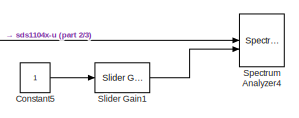
[diagram: root canvas - part 1/3, top center region]
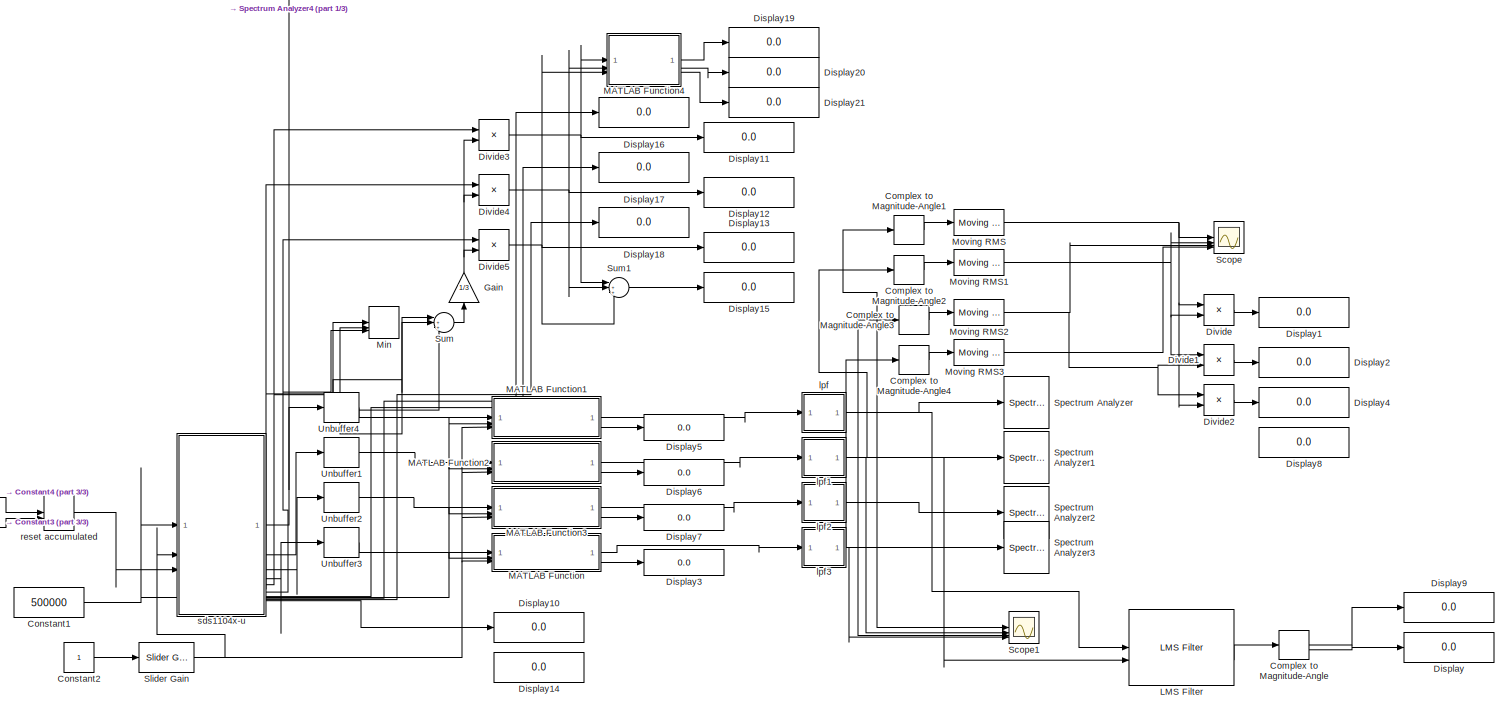
[diagram: root canvas - part 2/3, most of the canvas]
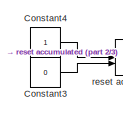
[diagram: root canvas - part 3/3, bottom left region]
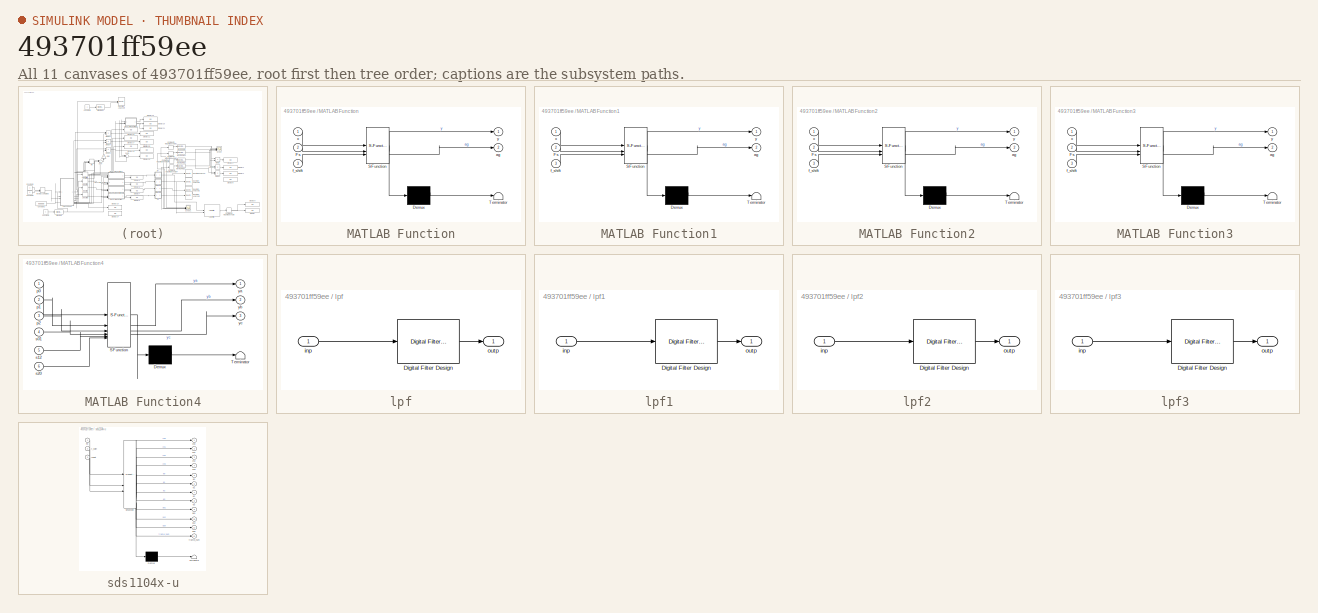
[diagram: thumbnail index - all 11 canvases of the model, root first then tree order]
MODEL slx_493701ff59ee
KIND model
CONFIG AbsTol = auto
CONFIG EnableMultiTasking = off
CONFIG FixedStep = auto
CONFIG MaxStep = auto
CONFIG MinStep = auto
CONFIG RelTol = 1e-3
CONFIG SampleTimeConstraint = Unconstrained
CONFIG SolverName = VariableStepAuto
CONFIG StartTime = 0.0
CONFIG StopTime = inf
BLOCK [ComplexToMagnitudeAngle] Complex to Magnitude-Angle
  Commented = on
BLOCK [ComplexToMagnitudeAngle] Complex to Magnitude-Angle1
  Commented = on
BLOCK [ComplexToMagnitudeAngle] Complex to Magnitude-Angle2
  Commented = on
BLOCK [ComplexToMagnitudeAngle] Complex to Magnitude-Angle3
  Commented = on
BLOCK [ComplexToMagnitudeAngle] Complex to Magnitude-Angle4
  Commented = on
BLOCK [Constant] Constant1
  Value = 500000
BLOCK [Constant] Constant2
BLOCK [Constant] Constant3
  Value = 0
BLOCK [Constant] Constant4
BLOCK [Constant] Constant5
BLOCK [Display] Display
  Commented = on
  Decimation = 1
BLOCK [Display] Display1
  Commented = on
  Decimation = 1
BLOCK [Display] Display10
  Commented = on
  Decimation = 1
BLOCK [Display] Display11
  Commented = on
  Decimation = 1
BLOCK [Display] Display12
  Commented = on
  Decimation = 1
BLOCK [Display] Display13
  Commented = on
  Decimation = 1
BLOCK [Display] Display14
  Commented = on
  Decimation = 1
BLOCK [Display] Display15
  Commented = on
  Decimation = 1
BLOCK [Display] Display16
  Commented = on
  Decimation = 1
BLOCK [Display] Display17
  Commented = on
  Decimation = 1
BLOCK [Display] Display18
  Commented = on
  Decimation = 1
BLOCK [Display] Display19
  Commented = on
  Decimation = 1
BLOCK [Display] Display2
  Commented = on
  Decimation = 1
BLOCK [Display] Display20
  Commented = on
  Decimation = 1
BLOCK [Display] Display21
  Commented = on
  Decimation = 1
BLOCK [Display] Display3
  Commented = on
  Decimation = 1
BLOCK [Display] Display4
  Commented = on
  Decimation = 1
BLOCK [Display] Display5
  Commented = on
  Decimation = 1
BLOCK [Display] Display6
  Commented = on
  Decimation = 1
BLOCK [Display] Display7
  Commented = on
  Decimation = 1
BLOCK [Display] Display8
  Commented = on
  Decimation = 1
BLOCK [Display] Display9
  Commented = on
  Decimation = 1
BLOCK [Product] Divide
  Commented = on
  Inputs = */
BLOCK [Product] Divide1
  Commented = on
  Inputs = */
BLOCK [Product] Divide2
  Commented = on
  Inputs = */
BLOCK [Product] Divide3
  Commented = on
  Inputs = */
BLOCK [Product] Divide4
  Commented = on
  Inputs = */
BLOCK [Product] Divide5
  Commented = on
  Inputs = */
BLOCK [Gain] Gain
  Commented = on
  Gain = 1/3
  NameLocation = right
BLOCK [Reference] LMS Filter  REF=dspadpt3/LMS Filter
  Commented = on
  LibrarySourceBlock = dsphdlsupportfiltering/LMS Filter
  SourceBlock = dspadpt3/LMS Filter
  SourceType = LMS Filter
BLOCK [SubSystem] MATLAB Function
  Commented = on
  ErrorFcn = Stateflow.Translate.translate
  LibrarySourceBlock = simulink/User-Defined\nFunctions/MATLAB Function
  PermitHierarchicalResolution = ExplicitOnly
  SFBlockType = MATLAB Function
  TreatAsAtomicUnit = on
BLOCK [Demux] MATLAB Function/ Demux 
  Outputs = 1
BLOCK [S-Function] MATLAB Function/ SFunction 
  EnableBusSupport = on
  FunctionName = sf_sfun
  PortCounts = [3 3]
  SFcnIsStateOwnerBlock = off
  SFunctionDeploymentMode = off
  Tag = Stateflow S-Function 1
BLOCK [Terminator] MATLAB Function/ Terminator 
BLOCK [Inport] MATLAB Function/Fs
  Port = 2
BLOCK [Outport] MATLAB Function/ag
  Port = 2
BLOCK [Inport] MATLAB Function/f_shift
  Port = 3
BLOCK [Inport] MATLAB Function/x
BLOCK [Outport] MATLAB Function/y
BLOCK [SubSystem] MATLAB Function1
  Commented = on
  ErrorFcn = Stateflow.Translate.translate
  LibrarySourceBlock = simulink/User-Defined\nFunctions/MATLAB Function
  PermitHierarchicalResolution = ExplicitOnly
  SFBlockType = MATLAB Function
  TreatAsAtomicUnit = on
BLOCK [Demux] MATLAB Function1/ Demux 
  Outputs = 1
BLOCK [S-Function] MATLAB Function1/ SFunction 
  EnableBusSupport = on
  FunctionName = sf_sfun
  PortCounts = [3 3]
  SFcnIsStateOwnerBlock = off
  SFunctionDeploymentMode = off
  Tag = Stateflow S-Function 3
BLOCK [Terminator] MATLAB Function1/ Terminator 
BLOCK [Inport] MATLAB Function1/Fs
  Port = 2
BLOCK [Outport] MATLAB Function1/ag
  Port = 2
BLOCK [Inport] MATLAB Function1/f_shift
  Port = 3
BLOCK [Inport] MATLAB Function1/x
BLOCK [Outport] MATLAB Function1/y
BLOCK [SubSystem] MATLAB Function2
  Commented = on
  ErrorFcn = Stateflow.Translate.translate
  LibrarySourceBlock = simulink/User-Defined\nFunctions/MATLAB Function
  PermitHierarchicalResolution = ExplicitOnly
  SFBlockType = MATLAB Function
  TreatAsAtomicUnit = on
BLOCK [Demux] MATLAB Function2/ Demux 
  Outputs = 1
BLOCK [S-Function] MATLAB Function2/ SFunction 
  EnableBusSupport = on
  FunctionName = sf_sfun
  PortCounts = [3 3]
  SFcnIsStateOwnerBlock = off
  SFunctionDeploymentMode = off
  Tag = Stateflow S-Function 4
BLOCK [Terminator] MATLAB Function2/ Terminator 
BLOCK [Inport] MATLAB Function2/Fs
  Port = 2
BLOCK [Outport] MATLAB Function2/ag
  Port = 2
BLOCK [Inport] MATLAB Function2/f_shift
  Port = 3
BLOCK [Inport] MATLAB Function2/x
BLOCK [Outport] MATLAB Function2/y
BLOCK [SubSystem] MATLAB Function3
  Commented = on
  ErrorFcn = Stateflow.Translate.translate
  LibrarySourceBlock = simulink/User-Defined\nFunctions/MATLAB Function
  PermitHierarchicalResolution = ExplicitOnly
  SFBlockType = MATLAB Function
  TreatAsAtomicUnit = on
BLOCK [Demux] MATLAB Function3/ Demux 
  Outputs = 1
BLOCK [S-Function] MATLAB Function3/ SFunction 
  EnableBusSupport = on
  FunctionName = sf_sfun
  PortCounts = [3 3]
  SFcnIsStateOwnerBlock = off
  SFunctionDeploymentMode = off
  Tag = Stateflow S-Function 5
BLOCK [Terminator] MATLAB Function3/ Terminator 
BLOCK [Inport] MATLAB Function3/Fs
  Port = 2
BLOCK [Outport] MATLAB Function3/ag
  Port = 2
BLOCK [Inport] MATLAB Function3/f_shift
  Port = 3
BLOCK [Inport] MATLAB Function3/x
BLOCK [Outport] MATLAB Function3/y
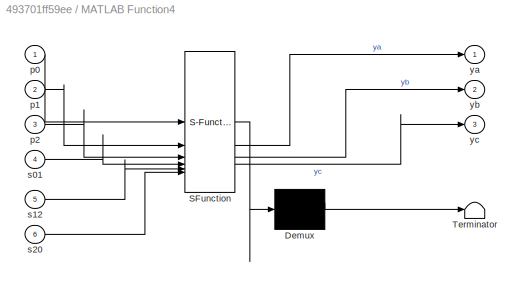
BLOCK [SubSystem] MATLAB Function4
  Commented = on
  ErrorFcn = Stateflow.Translate.translate
  LibrarySourceBlock = simulink/User-Defined\nFunctions/MATLAB Function
  PermitHierarchicalResolution = ExplicitOnly
  SFBlockType = MATLAB Function
  TreatAsAtomicUnit = on
BLOCK [Demux] MATLAB Function4/ Demux 
  Outputs = 1
BLOCK [S-Function] MATLAB Function4/ SFunction 
  EnableBusSupport = on
  FunctionName = sf_sfun
  PortCounts = [6 4]
  SFcnIsStateOwnerBlock = off
  SFunctionDeploymentMode = off
  Tag = Stateflow S-Function 6
BLOCK [Terminator] MATLAB Function4/ Terminator 
BLOCK [Inport] MATLAB Function4/p0
BLOCK [Inport] MATLAB Function4/p1
  Port = 2
BLOCK [Inport] MATLAB Function4/p2
  Port = 3
BLOCK [Inport] MATLAB Function4/s01
  Port = 4
BLOCK [Inport] MATLAB Function4/s12
  Port = 5
BLOCK [Inport] MATLAB Function4/s20
  Port = 6
BLOCK [Outport] MATLAB Function4/ya
BLOCK [Outport] MATLAB Function4/yb
  Port = 2
BLOCK [Outport] MATLAB Function4/yc
  Port = 3
BLOCK [MinMax] Min
  Commented = on
  Inputs = 3
BLOCK [Reference] Moving RMS  REF=dspstat3/Moving
RMS
  Commented = on
  SourceBlock = dspstat3/Moving\nRMS
  SourceType = dsp.simulink.MovingRMS
BLOCK [Reference] Moving RMS1  REF=dspstat3/Moving
RMS
  Commented = on
  SourceBlock = dspstat3/Moving\nRMS
  SourceType = dsp.simulink.MovingRMS
BLOCK [Reference] Moving RMS2  REF=dspstat3/Moving
RMS
  Commented = on
  SourceBlock = dspstat3/Moving\nRMS
  SourceType = dsp.simulink.MovingRMS
BLOCK [Reference] Moving RMS3  REF=dspstat3/Moving
RMS
  Commented = on
  SourceBlock = dspstat3/Moving\nRMS
  SourceType = dsp.simulink.MovingRMS
BLOCK [Scope] Scope
  Commented = on
  Floating = off
  NumInputPorts = 4
  ScopeSpecificationString = Simulink.scopes.TimeScopeBlockCfg('CurrentConfiguration', extmgr.ConfigurationSet(extmgr.Configuration('Core','General UI',true),extmgr.Configuration('Core','Source UI',true),extmgr.Configuration('Sources','WiredSimulink',true),extmgr.Configuration('Visuals','Time Domain',true,'SerializedDisplays',{struct('MinYLimReal','-0.06903','MaxYLimReal','0.62201','YLabelReal','','MinYLimMag','0.00000','MaxY...<+1446ch>
BLOCK [Scope] Scope1
  Commented = on
  Floating = off
  NumInputPorts = 4
  ScopeSpecificationString = Simulink.scopes.TimeScopeBlockCfg('CurrentConfiguration', extmgr.ConfigurationSet(extmgr.Configuration('Core','General UI',true),extmgr.Configuration('Core','Source UI',true),extmgr.Configuration('Sources','WiredSimulink',true,'DataLoggingVariableName','ScopeData1'),extmgr.Configuration('Visuals','Time Domain',true,'SerializedDisplays',{struct('MinYLimReal','-0.40869','MaxYLimReal','0.61008','YLab...<+1532ch>
BLOCK [Reference] Slider Gain  REF=simulink/Math
Operations/Slider
Gain
  SourceBlock = simulink/Math\nOperations/Slider\nGain
  SourceType = Slider Gain
BLOCK [Reference] Slider Gain1  REF=simulink/Math
Operations/Slider
Gain
  SourceBlock = simulink/Math\nOperations/Slider\nGain
  SourceType = Slider Gain
BLOCK [SpectrumAnalyzer] Spectrum Analyzer
  Commented = on
  GraphicalSettings = {"GraphicalSettings":{"Style":{"BackgroundColor":[0.1568627450980392,0.1568627450980392,0.1568627450980392],"AxesColor":[0,0,0],"LabelsColor":[0.6862745098039216,0.6862745098039216,0.6862745098039216],"PreserveColors":false,"Visible":[true],"LineStyle":["-"],"LineColor":[[1,1,0.06666666666666667]],"LineWidth":[1.5],"Marker":["none"],"FontSize":"small"},"Cursors":{"Enabled":false,"XLocation":[2,8],...<+831ch>  <repeated x5 — deduplicated; at blocks: Spectrum Analyzer, Spectrum Analyzer1, Spectrum Analyzer2, Spectrum Analyzer3, Spectrum Analyzer4>
  ScopeFrameLocation = window
  ScopeSpecificationString = spbscopes.SpectrumAnalyzerBlockCfg('CurrentConfiguration', extmgr.ConfigurationSet(extmgr.Configuration('Core','General UI',true),extmgr.Configuration('Core','Source UI',true),extmgr.Configuration('Sources','WiredSimulink',true),extmgr.Configuration('Visuals','Spectrum',true,'AxesProperties',struct('Color',{[0 0 0],[0 0 0]},'XColor',{[0.686274509803922 0.686274509803922 0.686274509803922],[0.68627...<+1359ch>  <repeated x5 — deduplicated; at blocks: Spectrum Analyzer, Spectrum Analyzer1, Spectrum Analyzer2, Spectrum Analyzer3, Spectrum Analyzer4>
  SelectedToolstripTab = spectrumAnalyzerToolstrip.spectrumTab
  Span = 1953.1249999999998
  StartFrequency = -976.5624999999999
  StopFrequency = 976.5624999999999
  WasSavedAsWebScope = on
  WindowPosition = [1333.000000,837.000000,800.000000,500.000000,]
  YLimits = [-200.02963136,37.61316984]
BLOCK [SpectrumAnalyzer] Spectrum Analyzer1
  Commented = on
  ScopeFrameLocation = window
  SelectedToolstripTab = spectrumAnalyzerToolstrip.spectrumTab
  Span = 499999.99999999994
  StartFrequency = -249999.99999999997
  StopFrequency = 249999.99999999997
  WasSavedAsWebScope = on
  WindowPosition = [331.000000,269.000000,800.000000,500.000000,]
  YLimits = [-197.24170404,43.77217197]
BLOCK [SpectrumAnalyzer] Spectrum Analyzer2
  Commented = on
  ScopeFrameLocation = window
  SelectedToolstripTab = spectrumAnalyzerToolstrip.spectrumTab
  Span = 499999.99999999994
  StartFrequency = -249999.99999999997
  StopFrequency = 249999.99999999997
  WasSavedAsWebScope = on
  WindowPosition = [384.000000,818.000000,800.000000,500.000000,]
  YLimits = [-195.91596838,38.54486346]
BLOCK [SpectrumAnalyzer] Spectrum Analyzer3
  Commented = on
  ScopeFrameLocation = window
  SelectedToolstripTab = spectrumAnalyzerToolstrip.spectrumTab
  Span = 499999.99999999994
  StartFrequency = -249999.99999999997
  StopFrequency = 249999.99999999997
  WasSavedAsWebScope = on
  WindowPosition = [2177.000000,135.000000,800.000000,500.000000,]
  YLimits = [-182.3936741,38.0814518]
BLOCK [SpectrumAnalyzer] Spectrum Analyzer4
  NumInputPorts = 2
  RBWSource = Input port
  ScopeFrameLocation = window
  Span = 1953.1249999999998
  StartFrequency = -976.5624999999999
  StopFrequency = 976.5624999999999
  WasSavedAsWebScope = on
  WindowPosition = [2081.000000,651.000000,1178.000000,500.000000,]
  YLimits = [-35.90285686,59.65598947]
BLOCK [Sum] Sum
  Commented = on
  Inputs = |+++
BLOCK [Sum] Sum1
  Commented = on
  Inputs = |+++
BLOCK [Unbuffer] Unbuffer1
  Commented = on
BLOCK [Unbuffer] Unbuffer2
  Commented = on
BLOCK [Unbuffer] Unbuffer3
  Commented = on
BLOCK [Unbuffer] Unbuffer4
  Commented = on
BLOCK [SubSystem] lpf
  Commented = on
BLOCK [Reference] lpf/Digital Filter Design  REF=dspfdesign/Digital
Filter Design
  SourceBlock = dspfdesign/Digital\nFilter Design
  SourceType = Digital Filter Design
  UserDataPersistent = on
BLOCK [Inport] lpf/inp
BLOCK [Outport] lpf/outp
BLOCK [SubSystem] lpf1
  Commented = on
BLOCK [Reference] lpf1/Digital Filter Design  REF=dspfdesign/Digital
Filter Design
  SourceBlock = dspfdesign/Digital\nFilter Design
  SourceType = Digital Filter Design
  UserDataPersistent = on
BLOCK [Inport] lpf1/inp
BLOCK [Outport] lpf1/outp
BLOCK [SubSystem] lpf2
  Commented = on
BLOCK [Reference] lpf2/Digital Filter Design  REF=dspfdesign/Digital
Filter Design
  SourceBlock = dspfdesign/Digital\nFilter Design
  SourceType = Digital Filter Design
  UserDataPersistent = on
BLOCK [Inport] lpf2/inp
BLOCK [Outport] lpf2/outp
BLOCK [SubSystem] lpf3
  Commented = on
BLOCK [Reference] lpf3/Digital Filter Design  REF=dspfdesign/Digital
Filter Design
  SourceBlock = dspfdesign/Digital\nFilter Design
  SourceType = Digital Filter Design
  UserDataPersistent = on
BLOCK [Inport] lpf3/inp
BLOCK [Outport] lpf3/outp
BLOCK [ManualSwitch] reset accumulated
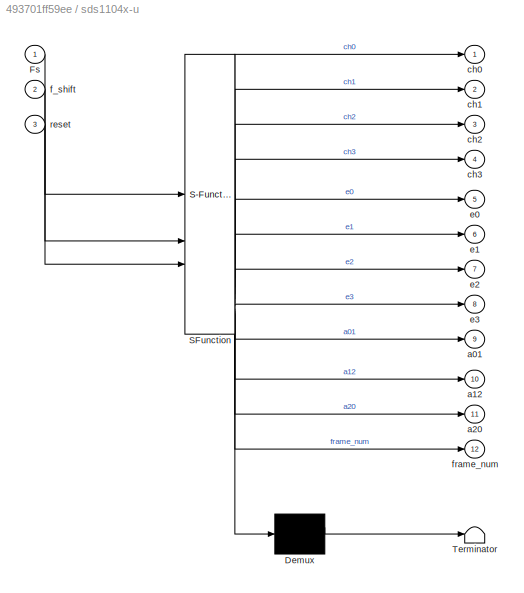
BLOCK [SubSystem] sds1104x-u
  ErrorFcn = Stateflow.Translate.translate
  LibrarySourceBlock = simulink/User-Defined\nFunctions/MATLAB Function
  PermitHierarchicalResolution = ExplicitOnly
  SFBlockType = MATLAB Function
  SystemSampleTime = 700000/500000
  TreatAsAtomicUnit = on
BLOCK [Demux] sds1104x-u/ Demux 
  Outputs = 1
BLOCK [S-Function] sds1104x-u/ SFunction 
  EnableBusSupport = on
  FunctionName = sf_sfun
  PortCounts = [3 13]
  SFcnIsStateOwnerBlock = off
  SFunctionDeploymentMode = off
  Tag = Stateflow S-Function 2
BLOCK [Terminator] sds1104x-u/ Terminator 
BLOCK [Inport] sds1104x-u/Fs
BLOCK [Outport] sds1104x-u/a01
  Port = 9
BLOCK [Outport] sds1104x-u/a12
  Port = 10
BLOCK [Outport] sds1104x-u/a20
  Port = 11
BLOCK [Outport] sds1104x-u/ch0
BLOCK [Outport] sds1104x-u/ch1
  Port = 2
BLOCK [Outport] sds1104x-u/ch2
  Port = 3
BLOCK [Outport] sds1104x-u/ch3
  Port = 4
BLOCK [Outport] sds1104x-u/e0
  Port = 5
BLOCK [Outport] sds1104x-u/e1
  Port = 6
BLOCK [Outport] sds1104x-u/e2
  Port = 7
BLOCK [Outport] sds1104x-u/e3
  Port = 8
BLOCK [Inport] sds1104x-u/f_shift
  Port = 2
BLOCK [Outport] sds1104x-u/frame_num
  Port = 12
BLOCK [Inport] sds1104x-u/reset
  Port = 3
LINE Complex to Magnitude-Angle1:1 -> Moving RMS:1
LINE Complex to Magnitude-Angle2:1 -> Moving RMS1:1
LINE Complex to Magnitude-Angle3:1 -> Moving RMS2:1
LINE Complex to Magnitude-Angle4:1 -> Moving RMS3:1
LINE Complex to Magnitude-Angle:1 -> Display9:1
LINE Complex to Magnitude-Angle:2 -> Display:1
NET Constant1:1 -> MATLAB Function1:2, MATLAB Function2:2, MATLAB Function3:2, MATLAB Function:2, sds1104x-u:1
LINE Constant2:1 -> Slider Gain:1
LINE Constant3:1 -> reset accumulated:2
LINE Constant4:1 -> reset accumulated:1
LINE Constant5:1 -> Slider Gain1:1
LINE Divide1:1 -> Display2:1
LINE Divide2:1 -> Display4:1
NET Divide3:1 -> Display11:1, MATLAB Function4:1, Sum1:1
NET Divide4:1 -> Display12:1, MATLAB Function4:2, Sum1:2
NET Divide5:1 -> Display13:1, MATLAB Function4:3, Sum1:3
LINE Divide:1 -> Display1:1
NET Gain:1 -> Divide3:2, Divide4:2, Divide5:2
LINE LMS Filter:2 -> Complex to Magnitude-Angle:1
LINE MATLAB Function1:1 -> lpf:1
LINE MATLAB Function1:2 -> Display5:1
LINE MATLAB Function2:1 -> lpf1:1
LINE MATLAB Function2:2 -> Display6:1
LINE MATLAB Function3:1 -> lpf2:1
LINE MATLAB Function3:2 -> Display7:1
LINE MATLAB Function4:1 -> Display19:1
LINE MATLAB Function4:2 -> Display20:1
LINE MATLAB Function4:3 -> Display21:1
LINE MATLAB Function:1 -> lpf3:1
LINE MATLAB Function:2 -> Display3:1
NET Moving RMS1:1 -> Divide1:1, Divide:2, Scope:2
NET Moving RMS2:1 -> Divide1:2, Divide2:1, Scope:3
LINE Moving RMS3:1 -> Scope:4
NET Moving RMS:1 -> Divide2:2, Divide:1, Scope:1
LINE Slider Gain1:1 -> Spectrum Analyzer4:2
NET Slider Gain:1 -> MATLAB Function1:3, MATLAB Function2:3, MATLAB Function3:3, MATLAB Function:3, sds1104x-u:2
LINE Sum1:1 -> Display15:1
LINE Sum:1 -> Gain:1
LINE Unbuffer1:1 -> MATLAB Function2:1
LINE Unbuffer2:1 -> MATLAB Function3:1
LINE Unbuffer3:1 -> MATLAB Function:1
LINE Unbuffer4:1 -> MATLAB Function1:1
LINE lpf/Digital Filter Design:1 -> lpf/outp:1
LINE lpf/inp:1 -> lpf/Digital Filter Design:1
LINE lpf1/Digital Filter Design:1 -> lpf1/outp:1
LINE lpf1/inp:1 -> lpf1/Digital Filter Design:1
NET lpf1:1 -> Complex to Magnitude-Angle2:1, LMS Filter:2, Scope1:2, Spectrum Analyzer1:1
LINE lpf2/Digital Filter Design:1 -> lpf2/outp:1
LINE lpf2/inp:1 -> lpf2/Digital Filter Design:1
NET lpf2:1 -> Complex to Magnitude-Angle3:1, Scope1:3, Spectrum Analyzer2:1
LINE lpf3/Digital Filter Design:1 -> lpf3/outp:1
LINE lpf3/inp:1 -> lpf3/Digital Filter Design:1
NET lpf3:1 -> Complex to Magnitude-Angle4:1, Scope1:4, Spectrum Analyzer3:1
NET lpf:1 -> Complex to Magnitude-Angle1:1, LMS Filter:1, Scope1:1, Spectrum Analyzer:1
LINE reset accumulated:1 -> sds1104x-u:3
NET sds1104x-u:1 -> Spectrum Analyzer4:1, Unbuffer4:1
LINE sds1104x-u:10 -> Display17:1
LINE sds1104x-u:11 -> Display18:1
LINE sds1104x-u:12 -> Display10:1
LINE sds1104x-u:2 -> Unbuffer1:1
LINE sds1104x-u:3 -> Unbuffer2:1
LINE sds1104x-u:4 -> Unbuffer3:1
NET sds1104x-u:5 -> Divide3:1, Min:1, Sum:1
NET sds1104x-u:6 -> Divide4:1, Min:2, Sum:2
NET sds1104x-u:7 -> Divide5:1, Min:3, Sum:3
LINE sds1104x-u:9 -> Display16:1
note: NET lines group one-source signal fan-out (src -> all destinations, sorted); 1:1 wires keep LINE
CHART MATLAB Function states=1 transitions=1
  STATE_LABEL 'eML_blk_kernel()'
  STATE_LABEL 'SCRIPT:\nfunction [y,ag]= freq_conv(x, Fs, f_shift)\n% COMPLEX_DOWNCONVERTER Downconverts a real signal to complex baseband\n%\n% Inputs:\n%   x       - real input signal (scalar or vector per time step)\n%   Fs      - sampling rate (Hz)\n%   f_shift - frequency to shift down (Hz)\n%\n% Output:\n%   y       - complex baseband signal\n\n% Persistent time vector to maintain phase continuity\npersistent mx\nag = 1...<+261ch>'  <repeated x4 — deduplicated; at blocks: MATLAB Function, MATLAB Function1, MATLAB Function2, MATLAB Function3>
CHART sds1104x-u states=1 transitions=1
  STATE_LABEL 'eML_blk_kernel()'
  STATE_LABEL "SCRIPT:\n% this is for simulink matlab module\nfunction [ch0,ch1,ch2,ch3,e0,e1,e2,e3,a01,a12,a20,frame_num] = read_file_from_oscilloscope_receiver(Fs,f_shift,reset)\n    persistent buf\n    persistent frame_num_cnt e0i e1i e2i e3i a01i a12i a20i\n    N = 700000;\n    if isempty(buf) || reset ~= 0\n        buf = zeros(4*N,1,'int8');\n        frame_num_cnt = 0;\n        e0i = 0;\n        e1i = 0; \n        e2i...<+1167ch>"
CHART MATLAB Function1 states=1 transitions=1
  STATE_LABEL 'eML_blk_kernel()'
CHART MATLAB Function2 states=1 transitions=1
  STATE_LABEL 'eML_blk_kernel()'
CHART MATLAB Function3 states=1 transitions=1
  STATE_LABEL 'eML_blk_kernel()'
CHART MATLAB Function4 states=1 transitions=1
  STATE_LABEL 'eML_blk_kernel()'
  STATE_LABEL 'SCRIPT:\nfunction [ya, yb, yc] = fcn(p0,p1,p2,s01,s12,s20)\n%cos(alpha +/- 2π/3)=\n% cos(alpha)cos(2π/3) −/+ sin(alpha)sin(2π/3) =\n%-0.5cos(alpha) −/+ 0.5sqrt(3)sin(alpha)\n\n%we receive:\n% a = p*cos(alpha), b=p*cos(alpha+2π/3), c=p*cos(alpha-2π/3)  =>\n% b+c = -p*cos(alpha) and b-c = sqrt(3)*p*sin(alpha) =>\n% alpha = atan2((b-c)/sqrt(3),b+c)\nsa = 2*(0.5-s01); sb = 2*(0.5-s20);\na = p1*sa; b = p0; c = p2...<+504ch>'
CHART  states=0 transitions=0
CHART  states=0 transitions=0
CHART  states=0 transitions=0
CHART  states=0 transitions=0
CHART  states=0 transitions=0
CHART  states=0 transitions=0
